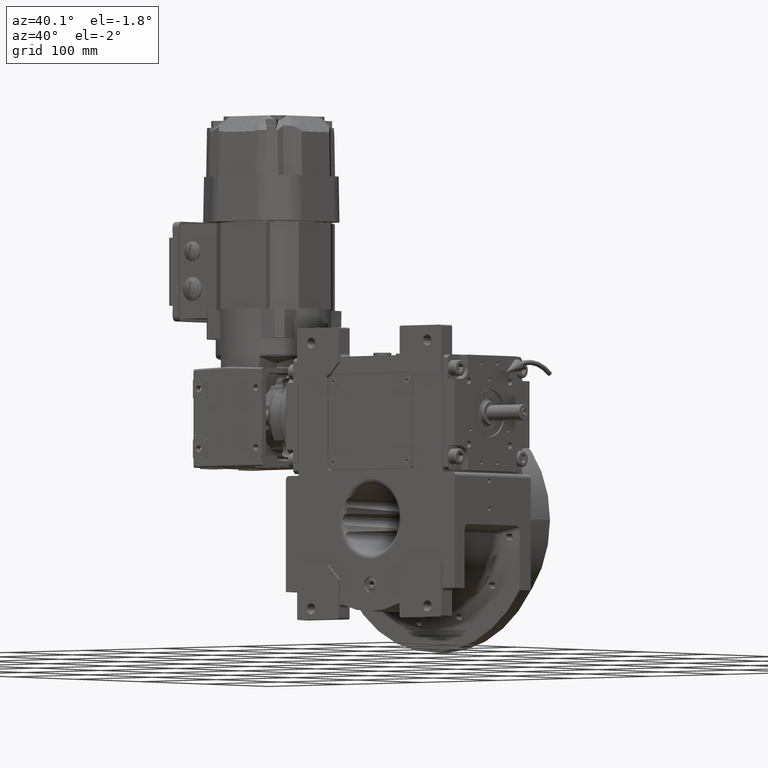
[diagram: clean part render]
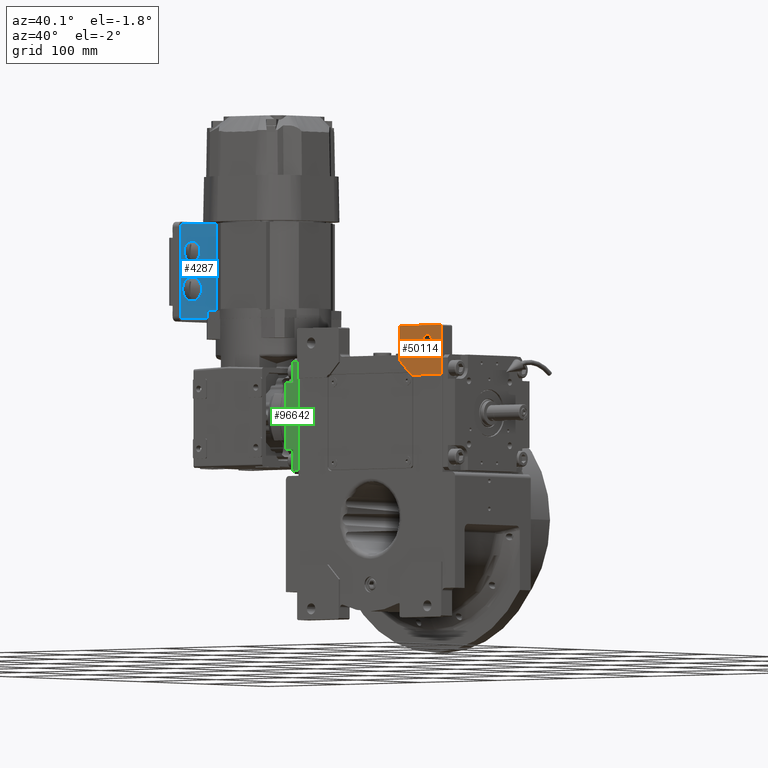
[diagram: same view with three faces highlighted in distinct colors, each labeled with its STEP entity id]
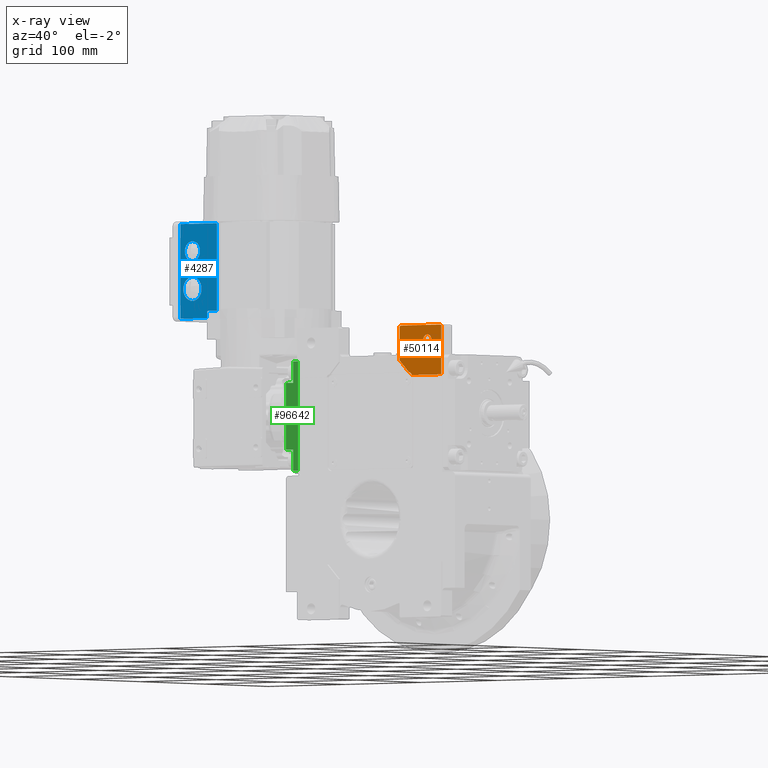
[diagram: x-ray of the same camera — body ghosted, the three highlighted faces saturated]
A machine part, auxiliary view with three faces highlighted in distinct colors.
The next image is the same camera in x-ray (body ghosted, the three faces saturated) — at least one of them is partly hidden behind the body in this view.
Their STEP definitions:

[orange] entity #50114 — the highlighted planar face has unit normal (0, -1, 0).
#1144 = AXIS2_PLACEMENT_3D ( 'NONE', #91405, #68194, #61624 ) ;
#2216 = DIRECTION ( 'NONE',  ( 0.000000000000000000, 1.000000000000000000, 0.000000000000000000 ) ) ;
#5362 = ORIENTED_EDGE ( 'NONE', *, *, #17839, .T. ) ;
#5673 = CARTESIAN_POINT ( 'NONE',  ( 93.50000000000000000, -55.50000000000000000, 193.0000000000000000 ) ) ;
#6885 = DIRECTION ( 'NONE',  ( 1.000000000000000000, 0.000000000000000000, 0.000000000000000000 ) ) ;
#7044 = DIRECTION ( 'NONE',  ( -0.7071067811865474617, 0.000000000000000000, 0.7071067811865474617 ) ) ;
#7786 = CARTESIAN_POINT ( 'NONE',  ( 76.20000000000000284, -55.50000000000000000, 178.0000000000000000 ) ) ;
#8624 = VECTOR ( 'NONE', #13303, 1000.000000000000000 ) ;
#8887 = CARTESIAN_POINT ( 'NONE',  ( 39.99999999999929656, -55.50000000000000000, 192.0000000000000000 ) ) ;
#9803 = CARTESIAN_POINT ( 'NONE',  ( 39.99999999999929656, -55.50000000000000000, 158.0000000000000000 ) ) ;
#9888 = VERTEX_POINT ( 'NONE', #85116 ) ;
#10910 = VECTOR ( 'NONE', #7044, 1000.000000000000114 ) ;
#11714 = VERTEX_POINT ( 'NONE', #57196 ) ;
#12701 = DIRECTION ( 'NONE',  ( 0.000000000000000000, -1.000000000000000000, 0.000000000000000000 ) ) ;
#13303 = DIRECTION ( 'NONE',  ( 0.000000000000000000, 0.000000000000000000, -1.000000000000000000 ) ) ;
#13703 = EDGE_LOOP ( 'NONE', ( #77851, #60323 ) ) ;
#14291 = CARTESIAN_POINT ( 'NONE',  ( 39.99999999999929656, -55.50000000000000000, 192.0000000000000000 ) ) ;
#14488 = CARTESIAN_POINT ( 'NONE',  ( 55.87298334620739837, -55.50000000000000000, 143.0000000000000000 ) ) ;
#17384 = CARTESIAN_POINT ( 'NONE',  ( 94.50000000000000000, -55.50000000000000000, 143.0000000000000000 ) ) ;
#17518 = VECTOR ( 'NONE', #6885, 1000.000000000000000 ) ;
#17522 = LINE ( 'NONE', #33160, #19952 ) ;
#17839 = EDGE_CURVE ( 'NONE', #45976, #90161, #37861, .T. ) ;
#19380 = LINE ( 'NONE', #17384, #92907 ) ;
#19952 = VECTOR ( 'NONE', #69571, 1000.000000000000114 ) ;
#21277 = FACE_BOUND ( 'NONE', #13703, .T. ) ;
#24654 = ORIENTED_EDGE ( 'NONE', *, *, #32946, .T. ) ;
#25080 = DIRECTION ( 'NONE',  ( 0.000000000000000000, -1.000000000000000000, 0.000000000000000000 ) ) ;
#31171 = DIRECTION ( 'NONE',  ( 0.9682458365518541443, 0.000000000000000000, 0.2500000000000004441 ) ) ;
#31757 = ORIENTED_EDGE ( 'NONE', *, *, #64120, .T. ) ;
#32046 = DIRECTION ( 'NONE',  ( -1.000000000000000000, 0.000000000000000000, 0.000000000000000000 ) ) ;
#32946 = EDGE_CURVE ( 'NONE', #78268, #11714, #83678, .T. ) ;
#33160 = CARTESIAN_POINT ( 'NONE',  ( 39.99999999999929656, -55.50000000000000000, 158.0000000000000000 ) ) ;
#35490 = ORIENTED_EDGE ( 'NONE', *, *, #58441, .T. ) ;
#37489 = AXIS2_PLACEMENT_3D ( 'NONE', #93294, #25080, #31171 ) ;
#37861 = LINE ( 'NONE', #70188, #10910 ) ;
#38639 = AXIS2_PLACEMENT_3D ( 'NONE', #81885, #12701, #66741 ) ;
#41528 = VERTEX_POINT ( 'NONE', #8887 ) ;
#41696 = EDGE_LOOP ( 'NONE', ( #77440, #35490, #73605, #24654, #31757, #5362, #71143, #50638 ) ) ;
#45976 = VERTEX_POINT ( 'NONE', #94191 ) ;
#46893 = VERTEX_POINT ( 'NONE', #63486 ) ;
#47822 = EDGE_CURVE ( 'NONE', #64355, #9888, #64028, .T. ) ;
#48172 = DIRECTION ( 'NONE',  ( 0.000000000000000000, 0.000000000000000000, 1.000000000000000000 ) ) ;
#48272 = VERTEX_POINT ( 'NONE', #95673 ) ;
#50114 = ADVANCED_FACE ( 'NONE', ( #21277, #97067 ), #51073, .T. ) ;
#50163 = CIRCLE ( 'NONE', #64667, 5.500000000000005329 ) ;
#50638 = ORIENTED_EDGE ( 'NONE', *, *, #98688, .T. ) ;
#51073 = PLANE ( 'NONE',  #38639 ) ;
#53653 = CARTESIAN_POINT ( 'NONE',  ( 81.69999999999998863, -55.50000000000000000, 178.0000000000000000 ) ) ;
#53923 = CARTESIAN_POINT ( 'NONE',  ( 40.99999999999930367, -55.50000000000000000, 193.0000000000000000 ) ) ;
#55763 = VECTOR ( 'NONE', #90434, 1000.000000000000000 ) ;
#57196 = CARTESIAN_POINT ( 'NONE',  ( 94.50000000000000000, -55.50000000000000000, 143.0000000000000000 ) ) ;
#58143 = EDGE_CURVE ( 'NONE', #41528, #79332, #97635, .T. ) ;
#58441 = EDGE_CURVE ( 'NONE', #79332, #48272, #17522, .T. ) ;
#59570 = EDGE_CURVE ( 'NONE', #78268, #48272, #86118, .T. ) ;
#60323 = ORIENTED_EDGE ( 'NONE', *, *, #91331, .T. ) ;
#61624 = DIRECTION ( 'NONE',  ( 1.000000000000000000, 0.000000000000000000, 0.000000000000000000 ) ) ;
#61990 = DIRECTION ( 'NONE',  ( -0.7071067811865474617, 0.000000000000000000, -0.7071067811865474617 ) ) ;
#63486 = CARTESIAN_POINT ( 'NONE',  ( 40.99999999999930367, -55.50000000000000000, 193.0000000000000000 ) ) ;
#64028 = CIRCLE ( 'NONE', #1144, 5.500000000000005329 ) ;
#64120 = EDGE_CURVE ( 'NONE', #11714, #45976, #19380, .T. ) ;
#64355 = VERTEX_POINT ( 'NONE', #53653 ) ;
#64667 = AXIS2_PLACEMENT_3D ( 'NONE', #7786, #2216, #32046 ) ;
#66225 = LINE ( 'NONE', #66712, #55763 ) ;
#66712 = CARTESIAN_POINT ( 'NONE',  ( 93.50000000000000000, -55.50000000000000000, 193.0000000000000000 ) ) ;
#66741 = DIRECTION ( 'NONE',  ( -1.000000000000000000, 0.000000000000000000, 0.000000000000000000 ) ) ;
#68194 = DIRECTION ( 'NONE',  ( 0.000000000000000000, 1.000000000000000000, 0.000000000000000000 ) ) ;
#69571 = DIRECTION ( 'NONE',  ( 0.7071067811865474617, 0.000000000000000000, -0.7071067811865474617 ) ) ;
#70188 = CARTESIAN_POINT ( 'NONE',  ( 94.50000000000000000, -55.50000000000000000, 192.0000000000000000 ) ) ;
#71143 = ORIENTED_EDGE ( 'NONE', *, *, #98114, .T. ) ;
#73605 = ORIENTED_EDGE ( 'NONE', *, *, #59570, .F. ) ;
#77440 = ORIENTED_EDGE ( 'NONE', *, *, #58143, .T. ) ;
#77851 = ORIENTED_EDGE ( 'NONE', *, *, #47822, .T. ) ;
#78268 = VERTEX_POINT ( 'NONE', #90885 ) ;
#79332 = VERTEX_POINT ( 'NONE', #9803 ) ;
#81885 = CARTESIAN_POINT ( 'NONE',  ( 0.000000000000000000, -55.50000000000000000, 0.000000000000000000 ) ) ;
#83678 = LINE ( 'NONE', #14488, #17518 ) ;
#85116 = CARTESIAN_POINT ( 'NONE',  ( 70.70000000000000284, -55.50000000000000000, 178.0000000000000000 ) ) ;
#86118 = CIRCLE ( 'NONE', #37489, 3.999999999999996891 ) ;
#86480 = VECTOR ( 'NONE', #61990, 1000.000000000000114 ) ;
#90161 = VERTEX_POINT ( 'NONE', #5673 ) ;
#90434 = DIRECTION ( 'NONE',  ( -1.000000000000000000, 0.000000000000000000, 0.000000000000000000 ) ) ;
#90885 = CARTESIAN_POINT ( 'NONE',  ( 55.87298334620739837, -55.50000000000000000, 143.0000000000000000 ) ) ;
#91285 = LINE ( 'NONE', #53923, #86480 ) ;
#91331 = EDGE_CURVE ( 'NONE', #9888, #64355, #50163, .T. ) ;
#91405 = CARTESIAN_POINT ( 'NONE',  ( 76.20000000000000284, -55.50000000000000000, 178.0000000000000000 ) ) ;
#92907 = VECTOR ( 'NONE', #48172, 1000.000000000000000 ) ;
#93294 = CARTESIAN_POINT ( 'NONE',  ( 52.00000000000000000, -55.50000000000000000, 142.0000000000000000 ) ) ;
#94191 = CARTESIAN_POINT ( 'NONE',  ( 94.50000000000000000, -55.50000000000000000, 192.0000000000000000 ) ) ;
#95673 = CARTESIAN_POINT ( 'NONE',  ( 51.99999999999930367, -55.50000000000000000, 146.0000000000000000 ) ) ;
#97067 = FACE_OUTER_BOUND ( 'NONE', #41696, .T. ) ;
#97635 = LINE ( 'NONE', #14291, #8624 ) ;
#98114 = EDGE_CURVE ( 'NONE', #90161, #46893, #66225, .T. ) ;
#98688 = EDGE_CURVE ( 'NONE', #46893, #41528, #91285, .T. ) ;

[blue] entity #4287 — the highlighted planar face has unit normal (0, -1, 0).
#669 = CIRCLE ( 'NONE', #10337, 11.99999999998840927 ) ;
#1005 = FACE_BOUND ( 'NONE', #65587, .T. ) ;
#3714 = CARTESIAN_POINT ( 'NONE',  ( 102.0000000000000000, -83.00000000000001421, -24.50000000000039790 ) ) ;
#4287 = ADVANCED_FACE ( 'NONE', ( #71227, #32837, #1005 ), #9082, .T. ) ;
#5365 = EDGE_CURVE ( 'NONE', #13675, #19613, #18474, .T. ) ;
#6989 = CARTESIAN_POINT ( 'NONE',  ( 131.5000000000000000, -67.00000000000000000, -24.50000000000066080 ) ) ;
#7452 = AXIS2_PLACEMENT_3D ( 'NONE', #70719, #25729, #63636 ) ;
#8025 = DIRECTION ( 'NONE',  ( 1.000000000000000000, 0.000000000000000000, -4.163336342339803443E-15 ) ) ;
#8160 = DIRECTION ( 'NONE',  ( 1.000000000000000000, 0.000000000000000000, -4.047688110616459745E-15 ) ) ;
#9082 = PLANE ( 'NONE',  #7452 ) ;
#9576 = AXIS2_PLACEMENT_3D ( 'NONE', #80582, #65431, #66904 ) ;
#10337 = AXIS2_PLACEMENT_3D ( 'NONE', #47060, #60685, #8160 ) ;
#10820 = VERTEX_POINT ( 'NONE', #15159 ) ;
#11782 = LINE ( 'NONE', #3714, #32434 ) ;
#13675 = VERTEX_POINT ( 'NONE', #85542 ) ;
#14517 = LINE ( 'NONE', #45291, #54079 ) ;
#14665 = CARTESIAN_POINT ( 'NONE',  ( 179.5000000000000000, -67.00000000000000000, -24.50000000000079226 ) ) ;
#15159 = CARTESIAN_POINT ( 'NONE',  ( 102.0000000000000000, -83.00000000000001421, -24.50000000000039790 ) ) ;
#16104 = EDGE_CURVE ( 'NONE', #79815, #36594, #669, .T. ) ;
#16281 = CIRCLE ( 'NONE', #45298, 10.00000000001088907 ) ;
#17830 = ORIENTED_EDGE ( 'NONE', *, *, #33218, .T. ) ;
#18474 = LINE ( 'NONE', #66443, #74719 ) ;
#19613 = VERTEX_POINT ( 'NONE', #59146 ) ;
#19710 = VERTEX_POINT ( 'NONE', #49565 ) ;
#20824 = ORIENTED_EDGE ( 'NONE', *, *, #36809, .T. ) ;
#23483 = LINE ( 'NONE', #52815, #85380 ) ;
#23500 = CARTESIAN_POINT ( 'NONE',  ( 197.0000000000000000, -83.00000000000001421, -24.50000000000092371 ) ) ;
#23814 = VERTEX_POINT ( 'NONE', #80295 ) ;
#24880 = ORIENTED_EDGE ( 'NONE', *, *, #5365, .F. ) ;
#25729 = DIRECTION ( 'NONE',  ( 4.364929470499957764E-15, 6.308816818961103563E-48, -1.000000000000000000 ) ) ;
#26040 = DIRECTION ( 'NONE',  ( -1.000000000000000000, -2.035031775951792212E-47, 4.218847493575594854E-15 ) ) ;
#28748 = CARTESIAN_POINT ( 'NONE',  ( 143.4999999999999716, -67.00000000000000000, -24.50000000000066080 ) ) ;
#29961 = VERTEX_POINT ( 'NONE', #35935 ) ;
#31093 = CARTESIAN_POINT ( 'NONE',  ( 159.4999999999889724, -67.00000000000000000, -24.50000000000066080 ) ) ;
#32212 = CARTESIAN_POINT ( 'NONE',  ( 109.1400000000000290, -83.00000000000001421, -24.50000000000052935 ) ) ;
#32434 = VECTOR ( 'NONE', #64337, 1000.000000000000000 ) ;
#32837 = FACE_BOUND ( 'NONE', #55841, .T. ) ;
#33218 = EDGE_CURVE ( 'NONE', #69233, #98167, #62787, .T. ) ;
#35935 = CARTESIAN_POINT ( 'NONE',  ( 102.0000000000000000, -47.95941546018389801, -24.50000000000039790 ) ) ;
#36261 = CARTESIAN_POINT ( 'NONE',  ( 119.5000000000119940, -67.00000000000000000, -24.50000000000052935 ) ) ;
#36594 = VERTEX_POINT ( 'NONE', #28748 ) ;
#36809 = EDGE_CURVE ( 'NONE', #98167, #69233, #16281, .T. ) ;
#37728 = DIRECTION ( 'NONE',  ( -1.000000000000000000, 2.073143168817319881E-16, 4.072765516651231943E-15 ) ) ;
#41057 = EDGE_CURVE ( 'NONE', #36594, #79815, #96928, .T. ) ;
#41263 = LINE ( 'NONE', #32212, #47303 ) ;
#42410 = EDGE_LOOP ( 'NONE', ( #44119, #70121, #24880, #60271, #65195, #44615 ) ) ;
#44119 = ORIENTED_EDGE ( 'NONE', *, *, #74841, .F. ) ;
#44615 = ORIENTED_EDGE ( 'NONE', *, *, #89882, .T. ) ;
#45291 = CARTESIAN_POINT ( 'NONE',  ( 102.0000000000000000, -47.95941546018389801, -24.50000000000039790 ) ) ;
#45298 = AXIS2_PLACEMENT_3D ( 'NONE', #77757, #53989, #8025 ) ;
#47060 = CARTESIAN_POINT ( 'NONE',  ( 131.5000000000000000, -67.00000000000000000, -24.50000000000066080 ) ) ;
#47303 = VECTOR ( 'NONE', #94308, 1000.000000000000000 ) ;
#47308 = ORIENTED_EDGE ( 'NONE', *, *, #41057, .T. ) ;
#49565 = CARTESIAN_POINT ( 'NONE',  ( 109.1400000000000290, -47.95941546018389801, -24.50000000000052935 ) ) ;
#51492 = EDGE_CURVE ( 'NONE', #23814, #10820, #23483, .T. ) ;
#52815 = CARTESIAN_POINT ( 'NONE',  ( 102.0000000000000000, -83.00000000000001421, -24.50000000000039790 ) ) ;
#53366 = AXIS2_PLACEMENT_3D ( 'NONE', #6989, #99425, #75700 ) ;
#53837 = DIRECTION ( 'NONE',  ( 2.035031775951793428E-47, 1.000000000000000000, 6.308816818961192290E-48 ) ) ;
#53989 = DIRECTION ( 'NONE',  ( -4.364929470499957764E-15, 6.308816818961189859E-48, 1.000000000000000000 ) ) ;
#54079 = VECTOR ( 'NONE', #37728, 1000.000000000000000 ) ;
#55841 = EDGE_LOOP ( 'NONE', ( #47308, #84506 ) ) ;
#59146 = CARTESIAN_POINT ( 'NONE',  ( 109.1400000000000290, -34.99642838919420029, -24.50000000000052935 ) ) ;
#60271 = ORIENTED_EDGE ( 'NONE', *, *, #82684, .F. ) ;
#60608 = EDGE_CURVE ( 'NONE', #19613, #19710, #41263, .T. ) ;
#60685 = DIRECTION ( 'NONE',  ( -4.364929470499957764E-15, 6.308816818961189859E-48, 1.000000000000000000 ) ) ;
#60871 = DIRECTION ( 'NONE',  ( -1.000000000000000000, -2.035031775951792212E-47, 4.072765516651231943E-15 ) ) ;
#61410 = VECTOR ( 'NONE', #53837, 1000.000000000000000 ) ;
#62787 = CIRCLE ( 'NONE', #9576, 10.00000000001088907 ) ;
#63636 = DIRECTION ( 'NONE',  ( -2.035031775951793428E-47, -1.000000000000000000, -6.308816818961192290E-48 ) ) ;
#64337 = DIRECTION ( 'NONE',  ( 2.035031775951793428E-47, 1.000000000000000000, 6.308816818961192290E-48 ) ) ;
#65195 = ORIENTED_EDGE ( 'NONE', *, *, #51492, .T. ) ;
#65431 = DIRECTION ( 'NONE',  ( -4.364929470499957764E-15, 6.308816818961189859E-48, 1.000000000000000000 ) ) ;
#65587 = EDGE_LOOP ( 'NONE', ( #20824, #17830 ) ) ;
#66443 = CARTESIAN_POINT ( 'NONE',  ( 198.5000000000000000, -34.99642838919420029, -24.50000000000092371 ) ) ;
#66904 = DIRECTION ( 'NONE',  ( 1.000000000000000000, 0.000000000000000000, -4.163336342339803443E-15 ) ) ;
#69233 = VERTEX_POINT ( 'NONE', #31093 ) ;
#70121 = ORIENTED_EDGE ( 'NONE', *, *, #60608, .F. ) ;
#70719 = CARTESIAN_POINT ( 'NONE',  ( 102.0000000000000000, -83.00000000000001421, -24.50000000000039790 ) ) ;
#71227 = FACE_OUTER_BOUND ( 'NONE', #42410, .T. ) ;
#74719 = VECTOR ( 'NONE', #26040, 1000.000000000000000 ) ;
#74841 = EDGE_CURVE ( 'NONE', #19710, #29961, #14517, .T. ) ;
#75700 = DIRECTION ( 'NONE',  ( 1.000000000000000000, 0.000000000000000000, -4.047688110616459745E-15 ) ) ;
#77757 = CARTESIAN_POINT ( 'NONE',  ( 169.4999999999999716, -67.00000000000000000, -24.50000000000079226 ) ) ;
#79815 = VERTEX_POINT ( 'NONE', #36261 ) ;
#80295 = CARTESIAN_POINT ( 'NONE',  ( 197.0000000000000000, -83.00000000000001421, -24.50000000000092371 ) ) ;
#80582 = CARTESIAN_POINT ( 'NONE',  ( 169.4999999999999716, -67.00000000000000000, -24.50000000000079226 ) ) ;
#82684 = EDGE_CURVE ( 'NONE', #23814, #13675, #85153, .T. ) ;
#84506 = ORIENTED_EDGE ( 'NONE', *, *, #16104, .T. ) ;
#85153 = LINE ( 'NONE', #23500, #61410 ) ;
#85380 = VECTOR ( 'NONE', #60871, 1000.000000000000000 ) ;
#85542 = CARTESIAN_POINT ( 'NONE',  ( 197.0000000000000000, -34.99642838919420029, -24.50000000000092371 ) ) ;
#89882 = EDGE_CURVE ( 'NONE', #10820, #29961, #11782, .T. ) ;
#94308 = DIRECTION ( 'NONE',  ( -6.123233995736769734E-17, -1.000000000000000000, 2.493849626822321541E-31 ) ) ;
#96928 = CIRCLE ( 'NONE', #53366, 11.99999999998840927 ) ;
#98167 = VERTEX_POINT ( 'NONE', #14665 ) ;
#99425 = DIRECTION ( 'NONE',  ( -4.364929470499957764E-15, 6.308816818961189859E-48, 1.000000000000000000 ) ) ;

[green] entity #96642 — the highlighted planar face has unit normal (0, -1, -0).
#2660 = DIRECTION ( 'NONE',  ( 3.341771304121721187E-14, 1.221245327086963403E-15, 1.000000000000000000 ) ) ;
#8163 = DIRECTION ( 'NONE',  ( 3.341771304121721187E-14, 1.221245327086963403E-15, 1.000000000000000000 ) ) ;
#10277 = DIRECTION ( 'NONE',  ( 3.341771304121721187E-14, 1.221245327086963403E-15, 1.000000000000000000 ) ) ;
#12225 = LINE ( 'NONE', #96589, #13725 ) ;
#13028 = ORIENTED_EDGE ( 'NONE', *, *, #95681, .F. ) ;
#13725 = VECTOR ( 'NONE', #33998, 1000.000000000000000 ) ;
#13915 = EDGE_CURVE ( 'NONE', #28035, #22905, #12225, .T. ) ;
#14757 = CARTESIAN_POINT ( 'NONE',  ( -53.49999999999890576, -15.99999999999893241, 33.49999999999832312 ) ) ;
#16626 = VERTEX_POINT ( 'NONE', #77243 ) ;
#16879 = DIRECTION ( 'NONE',  ( -1.000000000000000000, 2.320366121466581587E-14, 3.341771304121718662E-14 ) ) ;
#17594 = LINE ( 'NONE', #32752, #77641 ) ;
#18369 = PLANE ( 'NONE',  #44471 ) ;
#18636 = LINE ( 'NONE', #66107, #37636 ) ;
#18816 = LINE ( 'NONE', #48127, #49905 ) ;
#20429 = CARTESIAN_POINT ( 'NONE',  ( -53.49999999999801759, -6.499999999998006928, 54.99999999999801759 ) ) ;
#22905 = VERTEX_POINT ( 'NONE', #71596 ) ;
#26074 = DIRECTION ( 'NONE',  ( 2.320366121466562654E-14, -1.000000000000000000, -1.221245327087546568E-15 ) ) ;
#27074 = EDGE_CURVE ( 'NONE', #32608, #69546, #77376, .T. ) ;
#28035 = VERTEX_POINT ( 'NONE', #53790 ) ;
#28335 = VERTEX_POINT ( 'NONE', #48940 ) ;
#28479 = EDGE_CURVE ( 'NONE', #16626, #63089, #55064, .T. ) ;
#31767 = EDGE_CURVE ( 'NONE', #22905, #92262, #18816, .T. ) ;
#31799 = CARTESIAN_POINT ( 'NONE',  ( -53.50000000000109424, -15.99999999999841904, -33.50000000000272138 ) ) ;
#32608 = VERTEX_POINT ( 'NONE', #41804 ) ;
#32752 = CARTESIAN_POINT ( 'NONE',  ( -53.49999999999890576, -15.99999999999893241, 33.49999999999832312 ) ) ;
#33998 = DIRECTION ( 'NONE',  ( 2.320366121466562654E-14, -1.000000000000000000, -1.221245327087546568E-15 ) ) ;
#36765 = CARTESIAN_POINT ( 'NONE',  ( -53.50000000000109424, -6.499999999998006928, -33.50000000000272138 ) ) ;
#37636 = VECTOR ( 'NONE', #80763, 1000.000000000000000 ) ;
#38995 = CARTESIAN_POINT ( 'NONE',  ( -53.49999999999890576, -6.499999999998936850, 33.49999999999874234 ) ) ;
#40453 = ORIENTED_EDGE ( 'NONE', *, *, #27074, .T. ) ;
#41362 = ORIENTED_EDGE ( 'NONE', *, *, #59344, .F. ) ;
#41804 = CARTESIAN_POINT ( 'NONE',  ( -53.49999999999890576, -6.499999999998936850, 33.49999999999874234 ) ) ;
#44471 = AXIS2_PLACEMENT_3D ( 'NONE', #63339, #16879, #10277 ) ;
#45793 = ORIENTED_EDGE ( 'NONE', *, *, #13915, .T. ) ;
#47053 = DIRECTION ( 'NONE',  ( 3.341771304121721187E-14, 1.221245327086963403E-15, 1.000000000000000000 ) ) ;
#48127 = CARTESIAN_POINT ( 'NONE',  ( -53.50000000000198241, -6.499999999998410161, -55.00000000000268585 ) ) ;
#48383 = DIRECTION ( 'NONE',  ( -2.320366121466562654E-14, 1.000000000000000000, 1.221245327087546568E-15 ) ) ;
#48448 = DIRECTION ( 'NONE',  ( 3.341771304121721187E-14, 1.221245327086963403E-15, 1.000000000000000000 ) ) ;
#48940 = CARTESIAN_POINT ( 'NONE',  ( -53.49999999999828049, 1.998401444325281773E-12, 54.99999999999828049 ) ) ;
#49470 = VECTOR ( 'NONE', #8163, 1000.000000000000000 ) ;
#49905 = VECTOR ( 'NONE', #2660, 1000.000000000000000 ) ;
#50804 = ORIENTED_EDGE ( 'NONE', *, *, #75999, .F. ) ;
#53717 = ORIENTED_EDGE ( 'NONE', *, *, #91887, .T. ) ;
#53790 = CARTESIAN_POINT ( 'NONE',  ( -53.50000000000224532, 1.582067810090848070E-12, -55.00000000000163425 ) ) ;
#54634 = CARTESIAN_POINT ( 'NONE',  ( -53.50000000000224532, 1.582067810090848070E-12, -55.00000000000163425 ) ) ;
#55064 = LINE ( 'NONE', #31799, #72263 ) ;
#59344 = EDGE_CURVE ( 'NONE', #16626, #92262, #18636, .T. ) ;
#60305 = ORIENTED_EDGE ( 'NONE', *, *, #28479, .T. ) ;
#63089 = VERTEX_POINT ( 'NONE', #14757 ) ;
#63339 = CARTESIAN_POINT ( 'NONE',  ( -53.50000000000224532, 1.582067810090848070E-12, -58.00000000000163425 ) ) ;
#66107 = CARTESIAN_POINT ( 'NONE',  ( -53.50000000000109424, -15.99999999999841904, -33.50000000000272138 ) ) ;
#69546 = VERTEX_POINT ( 'NONE', #20429 ) ;
#71596 = CARTESIAN_POINT ( 'NONE',  ( -53.50000000000198241, -6.499999999998410161, -55.00000000000268585 ) ) ;
#71744 = EDGE_LOOP ( 'NONE', ( #13028, #45793, #72020, #41362, #60305, #53717, #40453, #50804 ) ) ;
#71767 = VECTOR ( 'NONE', #47053, 1000.000000000000000 ) ;
#72020 = ORIENTED_EDGE ( 'NONE', *, *, #31767, .T. ) ;
#72263 = VECTOR ( 'NONE', #48448, 1000.000000000000000 ) ;
#73139 = LINE ( 'NONE', #54634, #71767 ) ;
#75999 = EDGE_CURVE ( 'NONE', #28335, #69546, #79619, .T. ) ;
#77243 = CARTESIAN_POINT ( 'NONE',  ( -53.50000000000109424, -15.99999999999841904, -33.50000000000272138 ) ) ;
#77376 = LINE ( 'NONE', #38995, #49470 ) ;
#77641 = VECTOR ( 'NONE', #48383, 1000.000000000000000 ) ;
#79619 = LINE ( 'NONE', #95281, #86542 ) ;
#80763 = DIRECTION ( 'NONE',  ( -2.320366121466562654E-14, 1.000000000000000000, 1.221245327087546568E-15 ) ) ;
#86084 = FACE_OUTER_BOUND ( 'NONE', #71744, .T. ) ;
#86542 = VECTOR ( 'NONE', #26074, 1000.000000000000000 ) ;
#91887 = EDGE_CURVE ( 'NONE', #63089, #32608, #17594, .T. ) ;
#92262 = VERTEX_POINT ( 'NONE', #36765 ) ;
#95281 = CARTESIAN_POINT ( 'NONE',  ( -53.49999999999828049, 1.998401444325281773E-12, 54.99999999999828049 ) ) ;
#95681 = EDGE_CURVE ( 'NONE', #28035, #28335, #73139, .T. ) ;
#96589 = CARTESIAN_POINT ( 'NONE',  ( -53.50000000000224532, 1.582067810090848070E-12, -55.00000000000163425 ) ) ;
#96642 = ADVANCED_FACE ( 'NONE', ( #86084 ), #18369, .T. ) ;